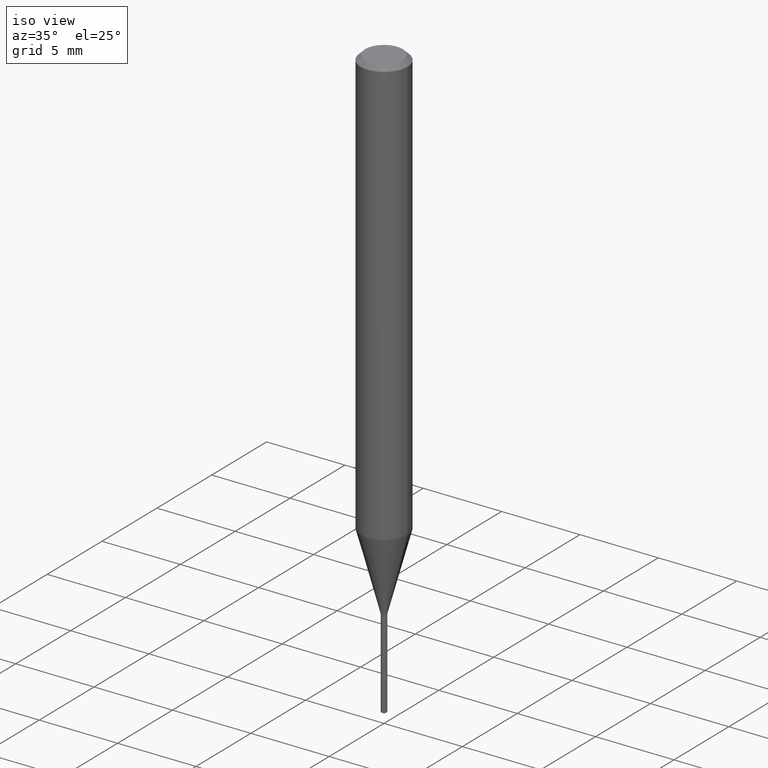
[diagram: clean part render]
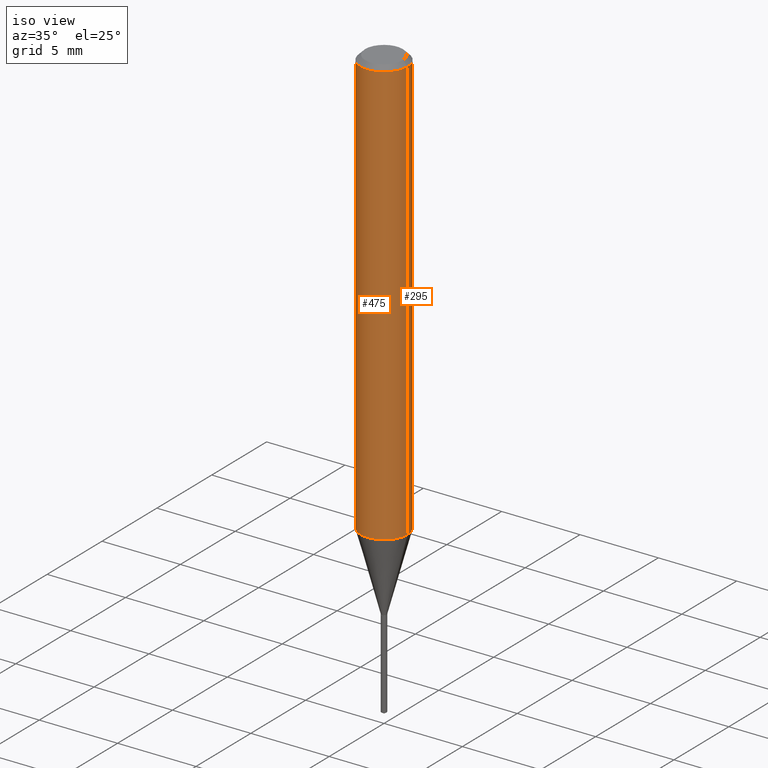
[diagram: same view with one multi-face feature highlighted, each face labeled with its STEP entity id]
A machine part, iso view. The highlighted faces form ONE feature: a constant-radius fillet chain: 2 tangent blend faces with common blend radius 1.4999 mm. The faces share edges in the B-rep.
Their STEP definitions:
[1] entity #475 (Cylinder):
#19 = ORIENTED_EDGE ( 'NONE', *, *, #462, .T. ) ;
#40 = CARTESIAN_POINT ( 'NONE',  ( -0.05905000000000006771, 4.195754854663396409E-16, -2.904631170795525045E-30 ) ) ;
#42 = VECTOR ( 'NONE', #320, 39.37007874015748143 ) ;
#57 = VERTEX_POINT ( 'NONE', #106 ) ;
#106 = CARTESIAN_POINT ( 'NONE',  ( -0.05905000000000013710, -3.331417676437672997E-15, -1.074327140223769073 ) ) ;
#133 = DIRECTION ( 'NONE',  ( -2.445468806185136597E-29, 3.491481338843145583E-15, 1.000000000000000000 ) ) ;
#135 = VECTOR ( 'NONE', #212, 39.37007874015748143 ) ;
#147 = LINE ( 'NONE', #397, #42 ) ;
#148 = CARTESIAN_POINT ( 'NONE',  ( -0.05904999999999999832, -1.476538292791535222E-15, -0.01181000000000007044 ) ) ;
#156 = CYLINDRICAL_SURFACE ( 'NONE', #209, 0.05905000000000006771 ) ;
#164 = CIRCLE ( 'NONE', #184, 0.05904999999999999832 ) ;
#175 = AXIS2_PLACEMENT_3D ( 'NONE', #293, #374, #294 ) ;
#183 = CARTESIAN_POINT ( 'NONE',  ( 0.05905000000000013710, -4.163337108021387805E-15, -1.074327140223769073 ) ) ;
#184 = AXIS2_PLACEMENT_3D ( 'NONE', #359, #217, #488 ) ;
#204 = EDGE_CURVE ( 'NONE', #287, #297, #164, .T. ) ;
#209 = AXIS2_PLACEMENT_3D ( 'NONE', #469, #133, #389 ) ;
#212 = DIRECTION ( 'NONE',  ( -2.445468806185136877E-29, 3.491481338843145188E-15, 1.000000000000000000 ) ) ;
#217 = DIRECTION ( 'NONE',  ( -2.445468806185136597E-29, 3.491481338843145583E-15, 1.000000000000000000 ) ) ;
#247 = EDGE_CURVE ( 'NONE', #57, #287, #250, .T. ) ;
#250 = LINE ( 'NONE', #40, #135 ) ;
#258 = VERTEX_POINT ( 'NONE', #183 ) ;
#287 = VERTEX_POINT ( 'NONE', #148 ) ;
#289 = CARTESIAN_POINT ( 'NONE',  ( 0.05904999999999999832, -4.535783407291118600E-16, -0.01181000000000007044 ) ) ;
#293 = CARTESIAN_POINT ( 'NONE',  ( 2.627233509055312695E-29, -3.750993161904012885E-15, -1.074327140223769073 ) ) ;
#294 = DIRECTION ( 'NONE',  ( 1.000000000000000000, -6.982962677686265133E-15, 0.000000000000000000 ) ) ;
#297 = VERTEX_POINT ( 'NONE', #289 ) ;
#298 = CIRCLE ( 'NONE', #175, 0.05905000000000013016 ) ;
#320 = DIRECTION ( 'NONE',  ( -2.445468806185136877E-29, 3.491481338843145188E-15, 1.000000000000000000 ) ) ;
#349 = ORIENTED_EDGE ( 'NONE', *, *, #204, .F. ) ;
#359 = CARTESIAN_POINT ( 'NONE',  ( 2.888098660104663766E-31, -4.123439461173779647E-17, -0.01181000000000007044 ) ) ;
#372 = FACE_OUTER_BOUND ( 'NONE', #378, .T. ) ;
#374 = DIRECTION ( 'NONE',  ( -2.445468806185136597E-29, 3.491481338843145583E-15, 1.000000000000000000 ) ) ;
#378 = EDGE_LOOP ( 'NONE', ( #463, #19, #383, #349 ) ) ;
#382 = EDGE_CURVE ( 'NONE', #258, #297, #147, .T. ) ;
#383 = ORIENTED_EDGE ( 'NONE', *, *, #382, .T. ) ;
#389 = DIRECTION ( 'NONE',  ( 1.000000000000000000, -6.982962677686266711E-15, 4.876176775795936353E-29 ) ) ;
#397 = CARTESIAN_POINT ( 'NONE',  ( 0.05905000000000006771, -4.123439461173745257E-16, 2.879382386107503723E-30 ) ) ;
#462 = EDGE_CURVE ( 'NONE', #57, #258, #298, .T. ) ;
#463 = ORIENTED_EDGE ( 'NONE', *, *, #247, .F. ) ;
#469 = CARTESIAN_POINT ( 'NONE',  ( 0.000000000000000000, 0.000000000000000000, 0.000000000000000000 ) ) ;
#475 = ADVANCED_FACE ( 'NONE', ( #372 ), #156, .T. ) ;
#488 = DIRECTION ( 'NONE',  ( 1.000000000000000000, -6.982962677686266711E-15, 0.000000000000000000 ) ) ;
[2] entity #295 (Cylinder):
#2 = DIRECTION ( 'NONE',  ( 1.000000000000000000, -6.982962677686266711E-15, 4.876176775795936353E-29 ) ) ;
#24 = CARTESIAN_POINT ( 'NONE',  ( 2.888098660104663766E-31, -4.123439461173779647E-17, -0.01181000000000007044 ) ) ;
#29 = AXIS2_PLACEMENT_3D ( 'NONE', #423, #234, #203 ) ;
#40 = CARTESIAN_POINT ( 'NONE',  ( -0.05905000000000006771, 4.195754854663396409E-16, -2.904631170795525045E-30 ) ) ;
#42 = VECTOR ( 'NONE', #320, 39.37007874015748143 ) ;
#57 = VERTEX_POINT ( 'NONE', #106 ) ;
#66 = EDGE_CURVE ( 'NONE', #258, #57, #78, .T. ) ;
#78 = CIRCLE ( 'NONE', #29, 0.05905000000000013016 ) ;
#83 = EDGE_CURVE ( 'NONE', #297, #287, #261, .T. ) ;
#99 = AXIS2_PLACEMENT_3D ( 'NONE', #447, #328, #2 ) ;
#106 = CARTESIAN_POINT ( 'NONE',  ( -0.05905000000000013710, -3.331417676437672997E-15, -1.074327140223769073 ) ) ;
#135 = VECTOR ( 'NONE', #212, 39.37007874015748143 ) ;
#147 = LINE ( 'NONE', #397, #42 ) ;
#148 = CARTESIAN_POINT ( 'NONE',  ( -0.05904999999999999832, -1.476538292791535222E-15, -0.01181000000000007044 ) ) ;
#158 = ORIENTED_EDGE ( 'NONE', *, *, #247, .T. ) ;
#160 = ORIENTED_EDGE ( 'NONE', *, *, #83, .F. ) ;
#183 = CARTESIAN_POINT ( 'NONE',  ( 0.05905000000000013710, -4.163337108021387805E-15, -1.074327140223769073 ) ) ;
#203 = DIRECTION ( 'NONE',  ( 1.000000000000000000, -6.982962677686265133E-15, 0.000000000000000000 ) ) ;
#212 = DIRECTION ( 'NONE',  ( -2.445468806185136877E-29, 3.491481338843145188E-15, 1.000000000000000000 ) ) ;
#224 = ORIENTED_EDGE ( 'NONE', *, *, #382, .F. ) ;
#234 = DIRECTION ( 'NONE',  ( -2.445468806185136597E-29, 3.491481338843145583E-15, 1.000000000000000000 ) ) ;
#237 = ORIENTED_EDGE ( 'NONE', *, *, #66, .T. ) ;
#247 = EDGE_CURVE ( 'NONE', #57, #287, #250, .T. ) ;
#250 = LINE ( 'NONE', #40, #135 ) ;
#258 = VERTEX_POINT ( 'NONE', #183 ) ;
#261 = CIRCLE ( 'NONE', #291, 0.05904999999999999832 ) ;
#285 = FACE_OUTER_BOUND ( 'NONE', #375, .T. ) ;
#287 = VERTEX_POINT ( 'NONE', #148 ) ;
#289 = CARTESIAN_POINT ( 'NONE',  ( 0.05904999999999999832, -4.535783407291118600E-16, -0.01181000000000007044 ) ) ;
#291 = AXIS2_PLACEMENT_3D ( 'NONE', #24, #387, #432 ) ;
#295 = ADVANCED_FACE ( 'NONE', ( #285 ), #435, .T. ) ;
#297 = VERTEX_POINT ( 'NONE', #289 ) ;
#320 = DIRECTION ( 'NONE',  ( -2.445468806185136877E-29, 3.491481338843145188E-15, 1.000000000000000000 ) ) ;
#328 = DIRECTION ( 'NONE',  ( -2.445468806185136597E-29, 3.491481338843145583E-15, 1.000000000000000000 ) ) ;
#375 = EDGE_LOOP ( 'NONE', ( #237, #158, #160, #224 ) ) ;
#382 = EDGE_CURVE ( 'NONE', #258, #297, #147, .T. ) ;
#387 = DIRECTION ( 'NONE',  ( -2.445468806185136597E-29, 3.491481338843145583E-15, 1.000000000000000000 ) ) ;
#397 = CARTESIAN_POINT ( 'NONE',  ( 0.05905000000000006771, -4.123439461173745257E-16, 2.879382386107503723E-30 ) ) ;
#423 = CARTESIAN_POINT ( 'NONE',  ( 2.627233509055312695E-29, -3.750993161904012885E-15, -1.074327140223769073 ) ) ;
#432 = DIRECTION ( 'NONE',  ( 1.000000000000000000, -6.982962677686266711E-15, 0.000000000000000000 ) ) ;
#435 = CYLINDRICAL_SURFACE ( 'NONE', #99, 0.05905000000000006771 ) ;
#447 = CARTESIAN_POINT ( 'NONE',  ( 0.000000000000000000, 0.000000000000000000, 0.000000000000000000 ) ) ;